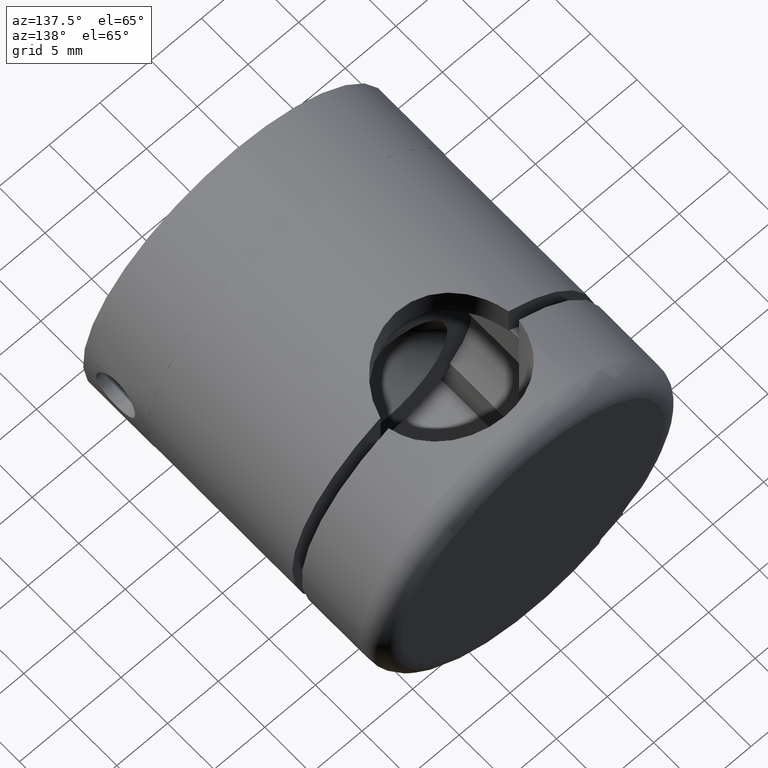
[diagram: clean part render]
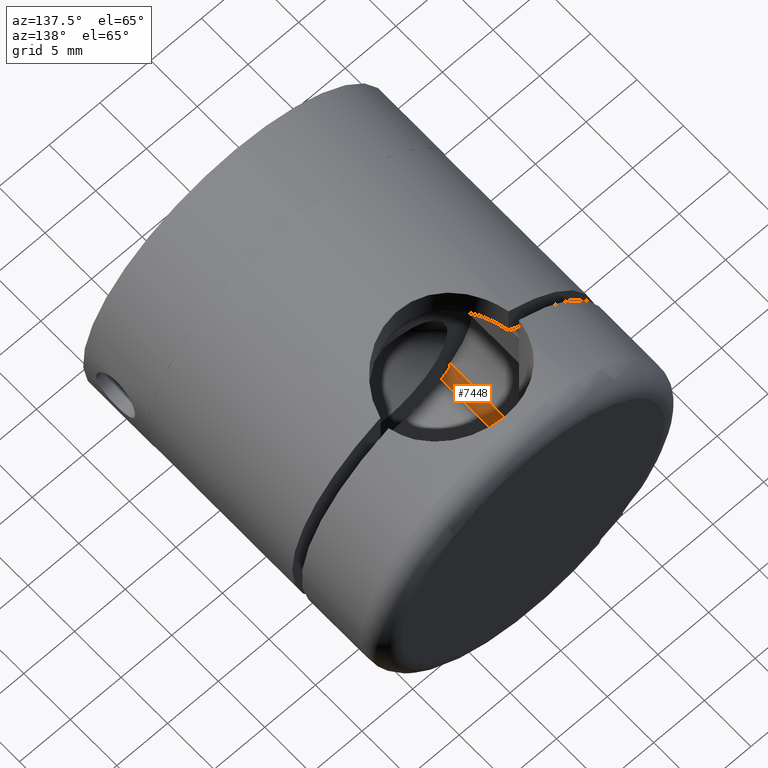
[diagram: same view with one face highlighted and labeled with its STEP entity id]
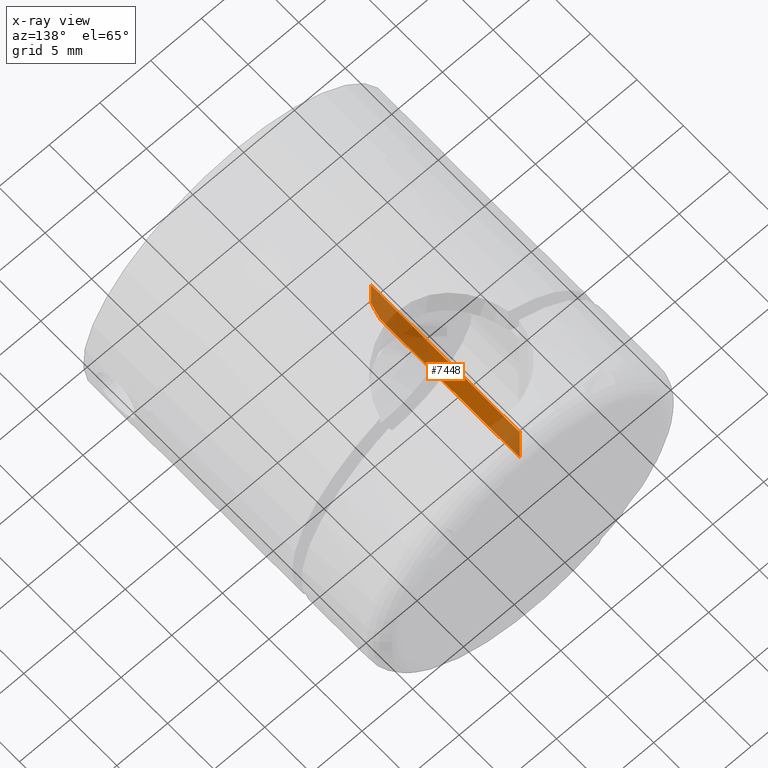
[diagram: x-ray of the same camera — body ghosted, the highlighted face saturated]
A machine part, auxiliary view. The second image highlights one B-rep face of the part: STEP entity #7448.
The next image is the same camera in x-ray: the body ghosted, the highlighted face saturated — about 55% of this face is hidden behind the body in this view.
In plain terms, the highlighted planar face has unit normal (-1, 0, -0).
Its self-contained STEP definition (entity closure, byte-faithful):
#1388 = CARTESIAN_POINT ( 'NONE',  ( -6.499999999999999100, 25.33712951246843700, 9.746177595508605400 ) ) ;
#1446 = VECTOR ( 'NONE', #12042, 1000.000000000000000 ) ;
#1671 = CARTESIAN_POINT ( 'NONE',  ( -6.500000000000003600, -51.39218191268330600, -29.99999999999999600 ) ) ;
#2507 = VERTEX_POINT ( 'NONE', #10420 ) ;
#2513 = ORIENTED_EDGE ( 'NONE', *, *, #10710, .T. ) ;
#2745 = CARTESIAN_POINT ( 'NONE',  ( -6.499999999999999100, 25.00000000000000000, 10.14655113819469200 ) ) ;
#2830 = VECTOR ( 'NONE', #14407, 1000.000000000000000 ) ;
#2943 = EDGE_CURVE ( 'NONE', #2507, #3823, #13105, .T. ) ;
#2992 = AXIS2_PLACEMENT_3D ( 'NONE', #1671, #6803, #3012 ) ;
#3012 = DIRECTION ( 'NONE',  ( 1.156482317317871500E-016, 0.0000000000000000000, 1.000000000000000000 ) ) ;
#3449 = CARTESIAN_POINT ( 'NONE',  ( -6.499999999999999100, -14.74873734152917100, 5.857687256929994900 ) ) ;
#3513 = CARTESIAN_POINT ( 'NONE',  ( -6.499999999999999100, 10.00000000000000200, 5.857687256929994900 ) ) ;
#3823 = VERTEX_POINT ( 'NONE', #8043 ) ;
#4114 = LINE ( 'NONE', #3449, #13872 ) ;
#4178 = VERTEX_POINT ( 'NONE', #4715 ) ;
#4715 = CARTESIAN_POINT ( 'NONE',  ( -6.499999999999999100, 10.00000000000000200, 10.14655113819469200 ) ) ;
#5189 = LINE ( 'NONE', #14632, #1446 ) ;
#6803 = DIRECTION ( 'NONE',  ( -1.000000000000000000, 0.0000000000000000000, 1.156482317317871500E-016 ) ) ;
#7448 = ADVANCED_FACE ( 'NONE', ( #13772 ), #9580, .F. ) ;
#7539 = VECTOR ( 'NONE', #8494, 1000.000000000000000 ) ;
#8043 = CARTESIAN_POINT ( 'NONE',  ( -6.499999999999999100, 25.00000000000000000, 10.14655113819469200 ) ) ;
#8209 = EDGE_CURVE ( 'NONE', #4178, #3823, #14773, .T. ) ;
#8287 = VERTEX_POINT ( 'NONE', #8778 ) ;
#8494 = DIRECTION ( 'NONE',  ( 0.0000000000000000000, 1.000000000000000000, 0.0000000000000000000 ) ) ;
#8778 = CARTESIAN_POINT ( 'NONE',  ( -6.499999999999999100, 26.00000000000000400, 5.857687256929994900 ) ) ;
#9580 = PLANE ( 'NONE',  #2992 ) ;
#9763 = ORIENTED_EDGE ( 'NONE', *, *, #16887, .T. ) ;
#9879 = LINE ( 'NONE', #13094, #2830 ) ;
#10292 = CARTESIAN_POINT ( 'NONE',  ( -6.499999999999999100, 26.00000000000000400, 8.936022605163893600 ) ) ;
#10420 = CARTESIAN_POINT ( 'NONE',  ( -6.499999999999999100, 26.00000000000000400, 8.936022605163893600 ) ) ;
#10710 = EDGE_CURVE ( 'NONE', #4178, #13692, #5189, .T. ) ;
#10770 = ORIENTED_EDGE ( 'NONE', *, *, #12933, .T. ) ;
#12042 = DIRECTION ( 'NONE',  ( -1.156482317317871500E-016, 0.0000000000000000000, -1.000000000000000000 ) ) ;
#12731 = EDGE_LOOP ( 'NONE', ( #2513, #10770, #9763, #15772, #14998 ) ) ;
#12933 = EDGE_CURVE ( 'NONE', #13692, #8287, #4114, .T. ) ;
#13094 = CARTESIAN_POINT ( 'NONE',  ( -6.500000000000000000, 26.00000000000000400, 7.517135062566164700E-016 ) ) ;
#13105 = B_SPLINE_CURVE_WITH_KNOTS ( 'NONE', 3,
 ( #10292, #14482, #1388, #2745 ),
 .UNSPECIFIED., .F., .F.,
 ( 4, 4 ),
 ( 1.734723475976807100E-018, 0.001570152645216920700 ),
 .UNSPECIFIED. ) ;
#13692 = VERTEX_POINT ( 'NONE', #3513 ) ;
#13772 = FACE_OUTER_BOUND ( 'NONE', #12731, .T. ) ;
#13872 = VECTOR ( 'NONE', #16779, 1000.000000000000000 ) ;
#14407 = DIRECTION ( 'NONE',  ( 1.156482317317871500E-016, -0.0000000000000000000, 1.000000000000000000 ) ) ;
#14482 = CARTESIAN_POINT ( 'NONE',  ( -6.499999999999999100, 25.67087475942840800, 9.343008360349257300 ) ) ;
#14632 = CARTESIAN_POINT ( 'NONE',  ( -6.500000000000003600, 10.00000000000000200, -29.99999999999999600 ) ) ;
#14773 = LINE ( 'NONE', #16642, #7539 ) ;
#14998 = ORIENTED_EDGE ( 'NONE', *, *, #8209, .F. ) ;
#15772 = ORIENTED_EDGE ( 'NONE', *, *, #2943, .T. ) ;
#16642 = CARTESIAN_POINT ( 'NONE',  ( -6.499999999999999100, 26.00000000000000400, 10.14655113819469200 ) ) ;
#16779 = DIRECTION ( 'NONE',  ( -0.0000000000000000000, 1.000000000000000000, -0.0000000000000000000 ) ) ;
#16887 = EDGE_CURVE ( 'NONE', #8287, #2507, #9879, .T. ) ;